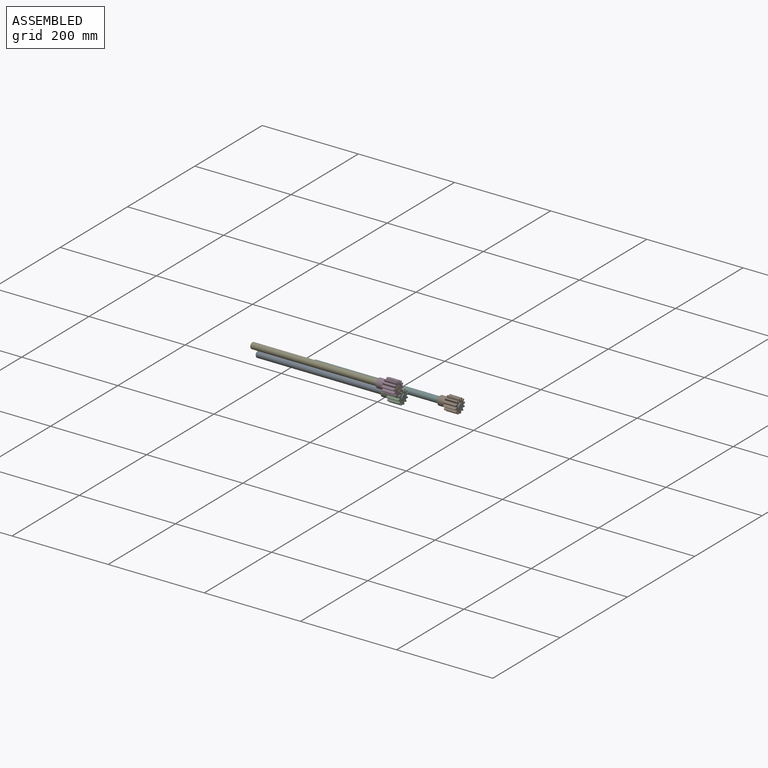
[diagram: assembled view]
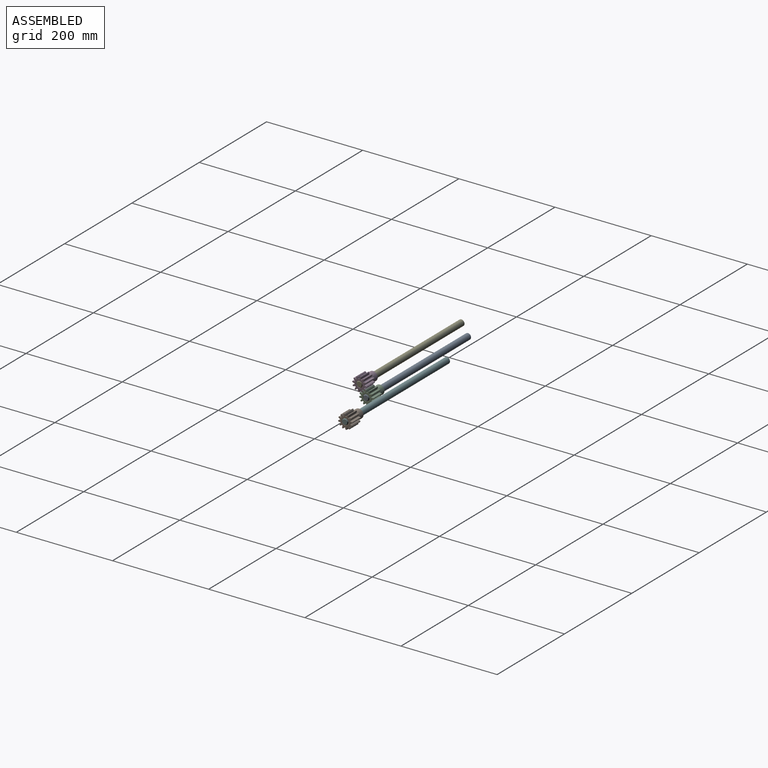
[diagram: assembled view, second angle]
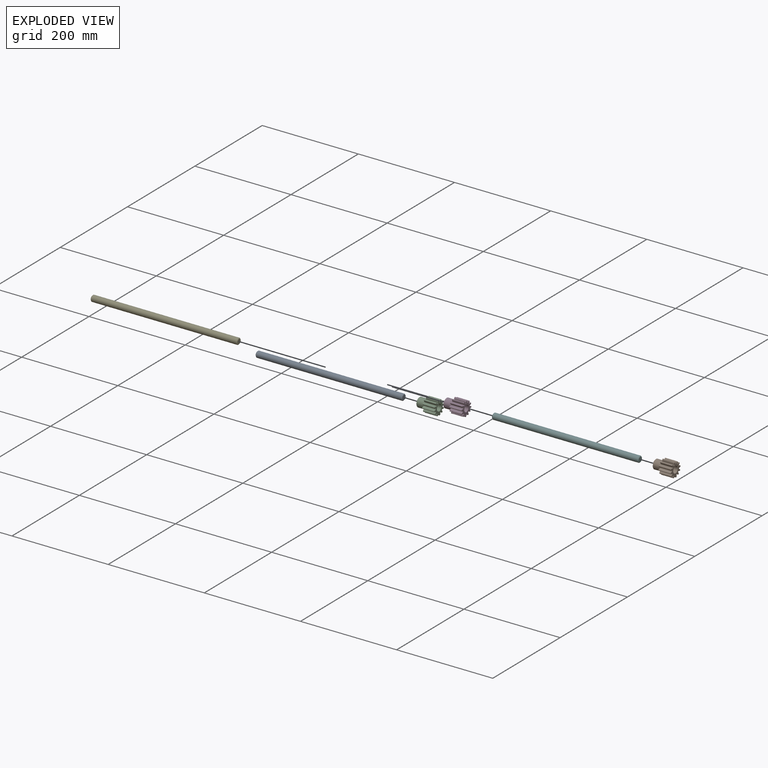
[diagram: exploded view]
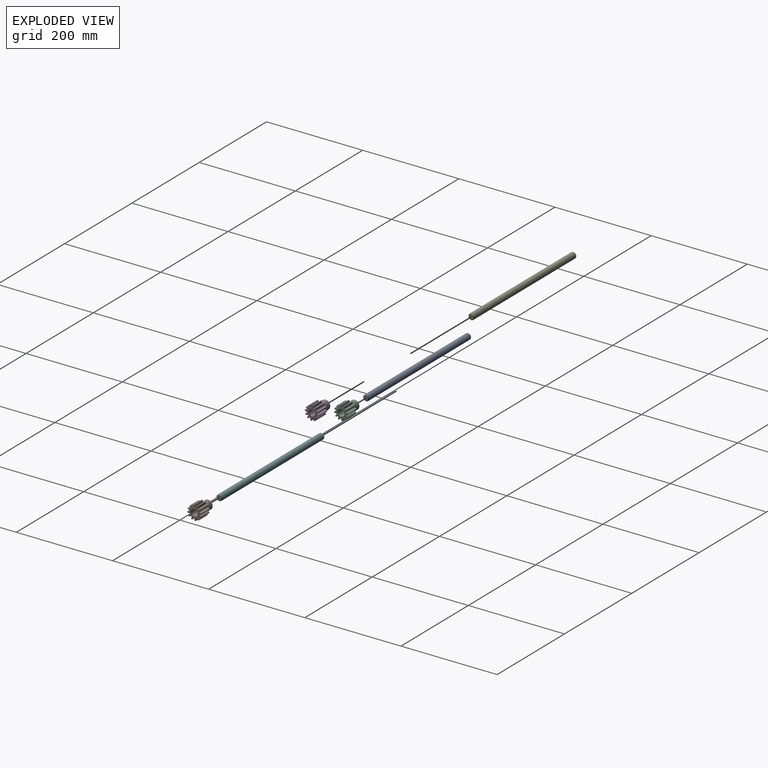
[diagram: exploded view, second angle]
ASSEMBLY  parts=6 mates=3
PART A: 5 faces, bbox 12.7x12.7x304.8 mm
  f0: cylinder r=6.35mm len=302.26mm, axis (0,0,-1), area 12059.6mm2, adj f3,f4
  f1: plane 10.16x10.16mm, normal (0,0,1), area 81.1mm2, adj f4
  f2: plane 10.16x10.16mm, normal (0,0,-1), area 81.1mm2, adj f3
  f3: cone r=6.35mm half-angle=45deg, axis (0,0,1), area 64.5mm2, adj f0,f2
  f4: cone r=5.08mm half-angle=45deg, axis (0,0,-1), area 64.5mm2, adj f0,f1
PART B: 129 faces, bbox 29.7x29.7x41.1 mm
  f0: cylinder r=14.86mm len=24.81mm, axis (0,0,1), area 36.2mm2, adj f1,f2,f115,f118
  f1: torus R=14.56mm, axis (0,0,1), area 0.7mm2, adj f0,f33,f115,f118
  f2: torus R=14.56mm, axis (0,0,1), area 0.7mm2, adj f0,f35,f115,f118
  f3: cylinder r=14.86mm len=24.81mm, axis (0,0,1), area 36.2mm2, adj f4,f5,f108,f111
  f4: torus R=14.56mm, axis (0,0,1), area 0.7mm2, adj f3,f33,f108,f111
  f5: torus R=14.56mm, axis (0,0,1), area 0.7mm2, adj f3,f35,f108,f111
  f6: cylinder r=14.86mm len=24.81mm, axis (0,0,1), area 36.2mm2, adj f7,f8,f101,f104
  f7: torus R=14.56mm, axis (0,0,1), area 0.7mm2, adj f6,f33,f101,f104
  f8: torus R=14.56mm, axis (0,0,1), area 0.7mm2, adj f6,f35,f101,f104
  f9: cylinder r=14.86mm len=24.81mm, axis (0,0,1), area 36.2mm2, adj f10,f11,f94,f97
  f10: torus R=14.56mm, axis (0,0,1), area 0.7mm2, adj f9,f33,f94,f97
  f11: torus R=14.56mm, axis (0,0,1), area 0.7mm2, adj f9,f35,f94,f97
  f12: cylinder r=14.86mm len=24.81mm, axis (0,0,1), area 36.2mm2, adj f13,f14,f87,f90
  f13: torus R=14.56mm, axis (0,0,1), area 0.7mm2, adj f12,f33,f87,f90
  f14: torus R=14.56mm, axis (0,0,1), area 0.7mm2, adj f12,f35,f87,f90
  f15: cylinder r=14.86mm len=24.81mm, axis (0,0,1), area 36.2mm2, adj f16,f17,f80,f83
  f16: torus R=14.56mm, axis (0,0,1), area 0.7mm2, adj f15,f33,f80,f83
  f17: torus R=14.56mm, axis (0,0,1), area 0.7mm2, adj f15,f35,f80,f83
  f18: cylinder r=14.86mm len=24.81mm, axis (0,0,1), area 36.2mm2, adj f19,f20,f73,f76
  f19: torus R=14.56mm, axis (0,0,1), area 0.7mm2, adj f18,f33,f73,f76
  f20: torus R=14.56mm, axis (0,0,1), area 0.7mm2, adj f18,f35,f73,f76
  f21: cylinder r=14.86mm len=24.81mm, axis (0,0,1), area 36.2mm2, adj f22,f23,f66,f69
  f22: torus R=14.56mm, axis (0,0,1), area 0.7mm2, adj f21,f33,f66,f69
  f23: torus R=14.56mm, axis (0,0,1), area 0.7mm2, adj f21,f35,f66,f69
  f24: cylinder r=14.86mm len=24.81mm, axis (0,0,1), area 36.2mm2, adj f25,f26,f59,f62
  f25: torus R=14.56mm, axis (0,0,1), area 0.7mm2, adj f24,f33,f59,f62
  f26: torus R=14.56mm, axis (0,0,1), area 0.7mm2, adj f24,f35,f59,f62
  f27: cylinder r=14.86mm len=24.81mm, axis (0,0,1), area 36.2mm2, adj f28,f29,f52,f55
  f28: torus R=14.56mm, axis (0,0,1), area 0.7mm2, adj f27,f33,f52,f55
  f29: torus R=14.56mm, axis (0,0,1), area 0.7mm2, adj f27,f35,f52,f55
  f30: cylinder r=14.86mm len=24.81mm, axis (0,0,1), area 36.2mm2, adj f31,f32,f44,f48
  f31: torus R=14.56mm, axis (0,0,1), area 0.7mm2, adj f30,f33,f44,f48
  f32: torus R=14.56mm, axis (0,0,1), area 0.7mm2, adj f30,f35,f44,f48
  f33: plane 29.18x29.18mm, normal (0,0,-1), area 190.6mm2, adj f1,f4,f7,f10,f13,f16,f19,f22
  f34: cylinder r=14.86mm len=24.81mm, axis (0,0,1), area 36.2mm2, adj f39,f40,f45,f122
  f35: plane 29.18x29.18mm, normal (0,0,1), area 347.3mm2, adj f2,f5,f8,f11,f14,f17,f20,f23
  f36: cylinder r=9.53mm len=19.05mm, axis (0,0,1), area 896.2mm2, adj f38,f128
  f37: plane 18.1x18.1mm, normal (0,0,-1), area 110.8mm2, adj f126,f128
  f38: torus R=9.82mm, axis (0,0,1), area 28.3mm2, adj f33,f36
  f39: torus R=14.56mm, axis (0,0,1), area 0.7mm2, adj f33,f34,f45,f122
  f40: torus R=14.56mm, axis (0,0,1), area 0.7mm2, adj f34,f35,f45,f122
  f41: plane 25.4x0.72mm, normal (-0.97,0.26,0), area 19mm2, adj f33,f35,f45,f46
  f42: cylinder r=10.25mm len=25.4mm, axis (0,0,1), area 12.1mm2, adj f33,f35,f46,f47
  f43: plane 25.4x0.75mm, normal (1,0,0), area 19mm2, adj f33,f35,f44,f47
  f44: extruded ~25.4x2.88mm, area 82.4mm2, adj f30,f31,f32,f33,f35,f43
  f45: extruded ~25.4x2.41mm, area 82.4mm2, adj f33,f34,f35,f39,f40,f41
  f46: cylinder r=1mm len=25.4mm, axis (0,0,1), area 37.1mm2, adj f33,f35,f41,f42
  f47: cylinder r=1mm len=25.4mm, axis (0,0,1), area 37.1mm2, adj f33,f35,f42,f43
  f48: extruded ~25.4x3.15mm, area 82.4mm2, adj f30,f31,f32,f33,f35,f49
  f49: plane 25.4x0.72mm, normal (-0.97,-0.26,0), area 19mm2, adj f33,f35,f48,f50
  f50: cylinder r=1mm len=25.4mm, axis (0,0,1), area 37.1mm2, adj f33,f35,f49,f51
  f51: cylinder r=10.25mm len=25.4mm, axis (0,0,1), area 12.1mm2, adj f33,f35,f50,f54
  f52: extruded ~25.4x2.67mm, area 82.4mm2, adj f27,f28,f29,f33,f35,f53
  f53: plane 25.4x0.65mm, normal (0.87,0.5,0), area 19mm2, adj f33,f35,f52,f54
  f54: cylinder r=1mm len=25.4mm, axis (0,0,1), area 37.1mm2, adj f33,f35,f51,f53
  f55: extruded ~25.4x3.04mm, area 82.4mm2, adj f27,f28,f29,f33,f35,f56
  f56: plane 25.4x0.53mm, normal (-0.71,-0.71,0), area 19mm2, adj f33,f35,f55,f57
  f57: cylinder r=1mm len=25.4mm, axis (0,0,1), area 37.1mm2, adj f33,f35,f56,f58
  f58: cylinder r=10.25mm len=25.4mm, axis (0,0,1), area 12.1mm2, adj f33,f35,f57,f61
  f59: extruded ~25.4x3.2mm, area 82.4mm2, adj f24,f25,f26,f33,f35,f60
  f60: plane 25.4x0.65mm, normal (0.5,0.87,0), area 19mm2, adj f33,f35,f59,f61
  f61: cylinder r=1mm len=25.4mm, axis (0,0,1), area 37.1mm2, adj f33,f35,f58,f60
  f62: extruded ~25.4x2.41mm, area 82.4mm2, adj f24,f25,f26,f33,f35,f63
  f63: plane 25.4x0.72mm, normal (-0.26,-0.97,0), area 19mm2, adj f33,f35,f62,f64
  f64: cylinder r=1mm len=25.4mm, axis (0,0,1), area 37.1mm2, adj f33,f35,f63,f65
  f65: cylinder r=10.25mm len=25.4mm, axis (0,0,1), area 12.1mm2, adj f33,f35,f64,f68
  f66: extruded ~25.4x2.88mm, area 82.4mm2, adj f21,f22,f23,f33,f35,f67
  f67: plane 25.4x0.75mm, normal (0,1,0), area 19mm2, adj f33,f35,f66,f68
  f68: cylinder r=1mm len=25.4mm, axis (0,0,1), area 37.1mm2, adj f33,f35,f65,f67
  f69: extruded ~25.4x3.15mm, area 82.4mm2, adj f21,f22,f23,f33,f35,f70
  f70: plane 25.4x0.72mm, normal (0.26,-0.97,0), area 19mm2, adj f33,f35,f69,f71
  f71: cylinder r=1mm len=25.4mm, axis (0,0,1), area 37.1mm2, adj f33,f35,f70,f72
  f72: cylinder r=10.25mm len=25.4mm, axis (0,0,1), area 12.1mm2, adj f33,f35,f71,f75
  f73: extruded ~25.4x2.67mm, area 82.4mm2, adj f18,f19,f20,f33,f35,f74
  f74: plane 25.4x0.65mm, normal (-0.5,0.87,0), area 19mm2, adj f33,f35,f73,f75
  f75: cylinder r=1mm len=25.4mm, axis (0,0,1), area 37.1mm2, adj f33,f35,f72,f74
  f76: extruded ~25.4x3.04mm, area 82.4mm2, adj f18,f19,f20,f33,f35,f77
  f77: plane 25.4x0.53mm, normal (0.71,-0.71,0), area 19mm2, adj f33,f35,f76,f78
  f78: cylinder r=1mm len=25.4mm, axis (0,0,1), area 37.1mm2, adj f33,f35,f77,f79
  f79: cylinder r=10.25mm len=25.4mm, axis (0,0,1), area 12.1mm2, adj f33,f35,f78,f82
  f80: extruded ~25.4x3.2mm, area 82.4mm2, adj f15,f16,f17,f33,f35,f81
  f81: plane 25.4x0.65mm, normal (-0.87,0.5,0), area 19mm2, adj f33,f35,f80,f82
  f82: cylinder r=1mm len=25.4mm, axis (0,0,1), area 37.1mm2, adj f33,f35,f79,f81
  f83: extruded ~25.4x2.41mm, area 82.4mm2, adj f15,f16,f17,f33,f35,f84
  f84: plane 25.4x0.72mm, normal (0.97,-0.26,0), area 19mm2, adj f33,f35,f83,f85
  f85: cylinder r=1mm len=25.4mm, axis (0,0,1), area 37.1mm2, adj f33,f35,f84,f86
  f86: cylinder r=10.25mm len=25.4mm, axis (0,0,1), area 12.1mm2, adj f33,f35,f85,f89
  f87: extruded ~25.4x2.88mm, area 82.4mm2, adj f12,f13,f14,f33,f35,f88
  f88: plane 25.4x0.75mm, normal (-1,0,0), area 19mm2, adj f33,f35,f87,f89
  f89: cylinder r=1mm len=25.4mm, axis (0,0,1), area 37.1mm2, adj f33,f35,f86,f88
  f90: extruded ~25.4x3.15mm, area 82.4mm2, adj f12,f13,f14,f33,f35,f91
  f91: plane 25.4x0.72mm, normal (0.97,0.26,0), area 19mm2, adj f33,f35,f90,f92
  f92: cylinder r=1mm len=25.4mm, axis (0,0,1), area 37.1mm2, adj f33,f35,f91,f93
  f93: cylinder r=10.25mm len=25.4mm, axis (0,0,1), area 12.1mm2, adj f33,f35,f92,f96
  f94: extruded ~25.4x2.67mm, area 82.4mm2, adj f9,f10,f11,f33,f35,f95
  f95: plane 25.4x0.65mm, normal (-0.87,-0.5,0), area 19mm2, adj f33,f35,f94,f96
  f96: cylinder r=1mm len=25.4mm, axis (0,0,1), area 37.1mm2, adj f33,f35,f93,f95
  f97: extruded ~25.4x3.04mm, area 82.4mm2, adj f9,f10,f11,f33,f35,f98
  f98: plane 25.4x0.53mm, normal (0.71,0.71,0), area 19mm2, adj f33,f35,f97,f99
  f99: cylinder r=1mm len=25.4mm, axis (0,0,1), area 37.1mm2, adj f33,f35,f98,f100
  f100: cylinder r=10.25mm len=25.4mm, axis (0,0,1), area 12.1mm2, adj f33,f35,f99,f103
  f101: extruded ~25.4x3.2mm, area 82.4mm2, adj f6,f7,f8,f33,f35,f102
  f102: plane 25.4x0.65mm, normal (-0.5,-0.87,0), area 19mm2, adj f33,f35,f101,f103
  f103: cylinder r=1mm len=25.4mm, axis (0,0,1), area 37.1mm2, adj f33,f35,f100,f102
  f104: extruded ~25.4x2.41mm, area 82.4mm2, adj f6,f7,f8,f33,f35,f105
  f105: plane 25.4x0.72mm, normal (0.26,0.97,0), area 19mm2, adj f33,f35,f104,f106
  f106: cylinder r=1mm len=25.4mm, axis (0,0,1), area 37.1mm2, adj f33,f35,f105,f107
  f107: cylinder r=10.25mm len=25.4mm, axis (0,0,1), area 12.1mm2, adj f33,f35,f106,f110
  f108: extruded ~25.4x2.88mm, area 82.4mm2, adj f3,f4,f5,f33,f35,f109
  f109: plane 25.4x0.75mm, normal (0,-1,0), area 19mm2, adj f33,f35,f108,f110
  f110: cylinder r=1mm len=25.4mm, axis (0,0,1), area 37.1mm2, adj f33,f35,f107,f109
  f111: extruded ~25.4x3.15mm, area 82.4mm2, adj f3,f4,f5,f33,f35,f112
  f112: plane 25.4x0.72mm, normal (-0.26,0.97,0), area 19mm2, adj f33,f35,f111,f113
  f113: cylinder r=1mm len=25.4mm, axis (0,0,1), area 37.1mm2, adj f33,f35,f112,f114
  f114: cylinder r=10.25mm len=25.4mm, axis (0,0,1), area 12.1mm2, adj f33,f35,f113,f117
  f115: extruded ~25.4x2.67mm, area 82.4mm2, adj f0,f1,f2,f33,f35,f116
  f116: plane 25.4x0.65mm, normal (0.5,-0.87,0), area 19mm2, adj f33,f35,f115,f117
  f117: cylinder r=1mm len=25.4mm, axis (0,0,1), area 37.1mm2, adj f33,f35,f114,f116
  f118: extruded ~25.4x3.04mm, area 82.4mm2, adj f0,f1,f2,f33,f35,f119
  f119: plane 25.4x0.53mm, normal (-0.71,0.71,0), area 19mm2, adj f33,f35,f118,f120
  f120: cylinder r=1mm len=25.4mm, axis (0,0,1), area 37.1mm2, adj f33,f35,f119,f121
  f121: cylinder r=10.25mm len=25.4mm, axis (0,0,1), area 12.1mm2, adj f33,f35,f120,f124
  f122: extruded ~25.4x3.2mm, area 82.4mm2, adj f33,f34,f35,f39,f40,f123
  f123: plane 25.4x0.65mm, normal (0.87,-0.5,0), area 19mm2, adj f33,f35,f122,f124
  f124: cylinder r=1mm len=25.4mm, axis (0,0,1), area 37.1mm2, adj f33,f35,f121,f123
  f125: cylinder r=6.35mm len=40.2mm, axis (0,0,1), area 1603.7mm2, adj f126,f127
  f126: cone r=6.83mm half-angle=45deg, axis (0,0,-1), area 27.9mm2, adj f37,f125
  f127: cone r=6.35mm half-angle=45deg, axis (0,0,1), area 27.9mm2, adj f35,f125
  f128: cone r=9.53mm half-angle=45deg, axis (0,0,1), area 39.3mm2, adj f36,f37
PART C: same geometry as B
PART D: 77 faces, bbox 29x41.1x29 mm
  f0: extruded ~25.4x3.74mm, area 110.2mm2, adj f47,f48,f49,f50
  f1: cylinder r=10.05mm len=25.4mm, axis (0,1,0), area 22.5mm2, adj f48,f49,f50,f51
  f2: extruded ~25.4x3.74mm, area 110.2mm2, adj f3,f48,f49,f51
  f3: cylinder r=14.82mm len=25.4mm, axis (0,1,0), area 33.3mm2, adj f2,f4,f48,f49
  f4: extruded ~25.4x4.21mm, area 110.2mm2, adj f3,f48,f49,f52
  f5: cylinder r=10.05mm len=25.4mm, axis (0,1,0), area 22.5mm2, adj f48,f49,f52,f53
  f6: extruded ~25.4x3.56mm, area 110.2mm2, adj f7,f48,f49,f53
  f7: cylinder r=14.82mm len=25.4mm, axis (0,1,0), area 33.3mm2, adj f6,f8,f48,f49
  f8: extruded ~25.4x3.56mm, area 110.2mm2, adj f7,f48,f49,f54
  f9: cylinder r=10.05mm len=25.4mm, axis (0,1,0), area 22.5mm2, adj f48,f49,f54,f55
  f10: extruded ~25.4x4.21mm, area 110.2mm2, adj f11,f48,f49,f55
  f11: cylinder r=14.82mm len=25.4mm, axis (0,1,0), area 33.3mm2, adj f10,f12,f48,f49
  f12: extruded ~25.4x3.74mm, area 110.2mm2, adj f11,f48,f49,f56
  f13: cylinder r=10.05mm len=25.4mm, axis (0,1,0), area 22.5mm2, adj f48,f49,f56,f57
  f14: extruded ~25.4x3.74mm, area 110.2mm2, adj f15,f48,f49,f57
  f15: cylinder r=14.82mm len=25.4mm, axis (0,1,0), area 33.3mm2, adj f14,f16,f48,f49
  f16: extruded ~25.4x4.21mm, area 110.2mm2, adj f15,f48,f49,f58
  f17: cylinder r=10.05mm len=25.4mm, axis (0,1,0), area 22.5mm2, adj f48,f49,f58,f59
  f18: extruded ~25.4x3.56mm, area 110.2mm2, adj f19,f48,f49,f59
  f19: cylinder r=14.82mm len=25.4mm, axis (0,1,0), area 33.3mm2, adj f18,f20,f48,f49
  f20: extruded ~25.4x3.56mm, area 110.2mm2, adj f19,f48,f49,f60
  f21: cylinder r=10.05mm len=25.4mm, axis (0,1,0), area 22.5mm2, adj f48,f49,f60,f61
  f22: extruded ~25.4x4.21mm, area 110.2mm2, adj f23,f48,f49,f61
  f23: cylinder r=14.82mm len=25.4mm, axis (0,1,0), area 33.3mm2, adj f22,f24,f48,f49
  f24: extruded ~25.4x3.74mm, area 110.2mm2, adj f23,f48,f49,f62
  f25: cylinder r=10.05mm len=25.4mm, axis (0,1,0), area 22.5mm2, adj f48,f49,f62,f63
  f26: extruded ~25.4x3.74mm, area 110.2mm2, adj f27,f48,f49,f63
  f27: cylinder r=14.82mm len=25.4mm, axis (0,1,0), area 33.3mm2, adj f26,f28,f48,f49
  f28: extruded ~25.4x4.21mm, area 110.2mm2, adj f27,f48,f49,f64
  f29: cylinder r=10.05mm len=25.4mm, axis (0,1,0), area 22.5mm2, adj f48,f49,f64,f65
  f30: extruded ~25.4x3.56mm, area 110.2mm2, adj f31,f48,f49,f65
  f31: cylinder r=14.82mm len=25.4mm, axis (0,1,0), area 33.3mm2, adj f30,f32,f48,f49
  f32: extruded ~25.4x3.56mm, area 110.2mm2, adj f31,f48,f49,f66
  f33: cylinder r=10.05mm len=25.4mm, axis (0,1,0), area 22.5mm2, adj f48,f49,f66,f67
  f34: extruded ~25.4x4.21mm, area 110.2mm2, adj f35,f48,f49,f67
  f35: cylinder r=14.82mm len=25.4mm, axis (0,1,0), area 33.3mm2, adj f34,f36,f48,f49
  f36: extruded ~25.4x3.74mm, area 110.2mm2, adj f35,f48,f49,f68
  f37: cylinder r=10.05mm len=25.4mm, axis (0,1,0), area 22.5mm2, adj f48,f49,f68,f69
  f38: extruded ~25.4x3.74mm, area 110.2mm2, adj f39,f48,f49,f69
  f39: cylinder r=14.82mm len=25.4mm, axis (0,1,0), area 33.3mm2, adj f38,f40,f48,f49
  f40: extruded ~25.4x4.21mm, area 110.2mm2, adj f39,f48,f49,f70
  f41: cylinder r=10.05mm len=25.4mm, axis (0,1,0), area 22.5mm2, adj f48,f49,f70,f71
  f42: extruded ~25.4x3.56mm, area 110.2mm2, adj f43,f48,f49,f71
  f43: cylinder r=14.82mm len=25.4mm, axis (0,1,0), area 33.3mm2, adj f42,f44,f48,f49
  f44: extruded ~25.4x3.56mm, area 110.2mm2, adj f43,f48,f49,f72
  f45: cylinder r=10.05mm len=25.4mm, axis (0,1,0), area 22.5mm2, adj f48,f49,f72,f73
  f46: extruded ~25.4x4.21mm, area 110.2mm2, adj f47,f48,f49,f73
  f47: cylinder r=14.82mm len=25.4mm, axis (0,1,0), area 33.3mm2, adj f0,f46,f48,f49
  f48: plane 29.01x29.01mm, normal (0,-1,0), area 202.3mm2, adj f0,f1,f2,f3,f4,f5,f6,f7
  f49: plane 29.01x29.01mm, normal (0,1,0), area 360.7mm2, adj f0,f1,f2,f3,f4,f5,f6,f7
  f50: cylinder r=0.78mm len=25.4mm, axis (0,1,0), area 29.6mm2, adj f0,f1,f48,f49
  f51: cylinder r=0.78mm len=25.4mm, axis (0,1,0), area 29.6mm2, adj f1,f2,f48,f49
  f52: cylinder r=0.78mm len=25.4mm, axis (0,1,0), area 29.6mm2, adj f4,f5,f48,f49
  f53: cylinder r=0.78mm len=25.4mm, axis (0,1,0), area 29.6mm2, adj f5,f6,f48,f49
  f54: cylinder r=0.78mm len=25.4mm, axis (0,1,0), area 29.6mm2, adj f8,f9,f48,f49
  f55: cylinder r=0.78mm len=25.4mm, axis (0,1,0), area 29.6mm2, adj f9,f10,f48,f49
  f56: cylinder r=0.78mm len=25.4mm, axis (0,1,0), area 29.6mm2, adj f12,f13,f48,f49
  f57: cylinder r=0.78mm len=25.4mm, axis (0,1,0), area 29.6mm2, adj f13,f14,f48,f49
  f58: cylinder r=0.78mm len=25.4mm, axis (0,1,0), area 29.6mm2, adj f16,f17,f48,f49
  f59: cylinder r=0.78mm len=25.4mm, axis (0,1,0), area 29.6mm2, adj f17,f18,f48,f49
  f60: cylinder r=0.78mm len=25.4mm, axis (0,1,0), area 29.6mm2, adj f20,f21,f48,f49
  f61: cylinder r=0.78mm len=25.4mm, axis (0,1,0), area 29.6mm2, adj f21,f22,f48,f49
  f62: cylinder r=0.78mm len=25.4mm, axis (0,1,0), area 29.6mm2, adj f24,f25,f48,f49
  f63: cylinder r=0.78mm len=25.4mm, axis (0,1,0), area 29.6mm2, adj f25,f26,f48,f49
  f64: cylinder r=0.78mm len=25.4mm, axis (0,1,0), area 29.6mm2, adj f28,f29,f48,f49
  f65: cylinder r=0.78mm len=25.4mm, axis (0,1,0), area 29.6mm2, adj f29,f30,f48,f49
  f66: cylinder r=0.78mm len=25.4mm, axis (0,1,0), area 29.6mm2, adj f32,f33,f48,f49
  f67: cylinder r=0.78mm len=25.4mm, axis (0,1,0), area 29.6mm2, adj f33,f34,f48,f49
  f68: cylinder r=0.78mm len=25.4mm, axis (0,1,0), area 29.6mm2, adj f36,f37,f48,f49
  f69: cylinder r=0.78mm len=25.4mm, axis (0,1,0), area 29.6mm2, adj f37,f38,f48,f49
  f70: cylinder r=0.78mm len=25.4mm, axis (0,1,0), area 29.6mm2, adj f40,f41,f48,f49
  f71: cylinder r=0.78mm len=25.4mm, axis (0,1,0), area 29.6mm2, adj f41,f42,f48,f49
  f72: cylinder r=0.78mm len=25.4mm, axis (0,1,0), area 29.6mm2, adj f44,f45,f48,f49
  f73: cylinder r=0.78mm len=25.4mm, axis (0,1,0), area 29.6mm2, adj f45,f46,f48,f49
  f74: cylinder r=9.53mm len=19.05mm, axis (0,1,0), area 942.5mm2, adj f48,f75
  f75: plane 19.05x19.05mm, normal (0,-1,0), area 158.3mm2, adj f74,f76
  f76: cylinder r=6.35mm len=41.15mm, axis (0,-1,0), area 1641.7mm2, adj f49,f75
PART E: same geometry as A
PART F: same geometry as A
PLACE A rot(axis=(0,1,0),90deg) t=(-99.81,3.55,-41.97)mm fixed
PLACE B rot(axis=(0,1,0),90deg) t=(151.13,29.67,-41.9)mm
PLACE C rot(axis=(0,1,0),90deg) t=(51.32,3.55,-41.97)mm
PLACE D rot(axis=(0.07,0.07,-1),90.3deg) t=(51.45,-10.79,-20.43)mm
PLACE E rot(axis=(0.07,1,0.07),90.3deg) t=(-100.95,-10.79,-20.43)mm fixed
PLACE F rot(axis=(0,1,0),90deg) t=(0,29.67,-41.9)mm fixed
MATE revolute A.f0 <-> C.f0  axis (1,0,0) through (51.32,3.55,-41.97)mm
MATE revolute D.f76 <-> E.f0  axis (1,0,0) through (51.45,-10.79,-20.43)mm
MATE revolute F.f0 <-> B.f0  axis (1,0,0) through (151.13,29.67,-41.9)mm
